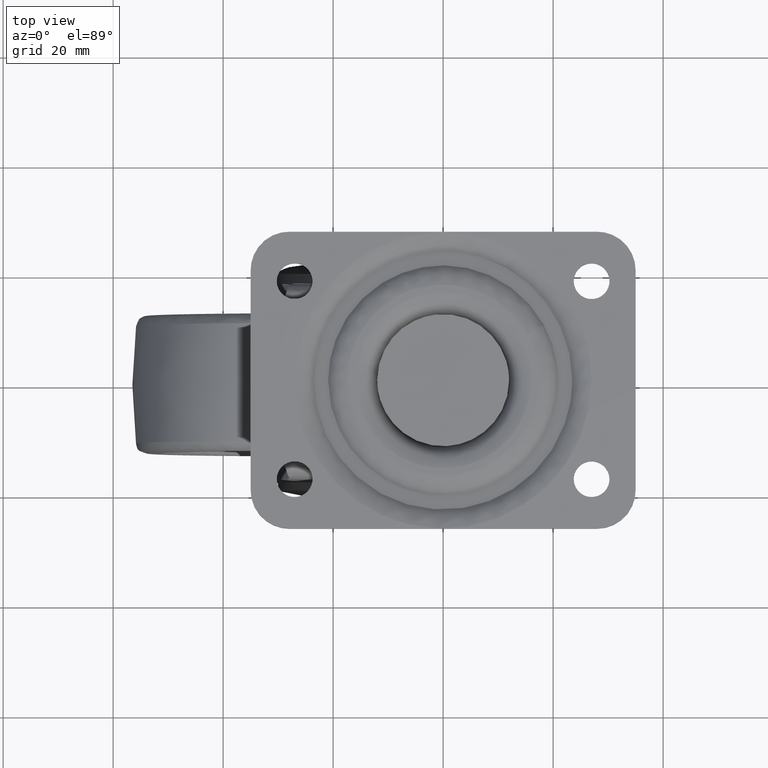
[diagram: clean part render]
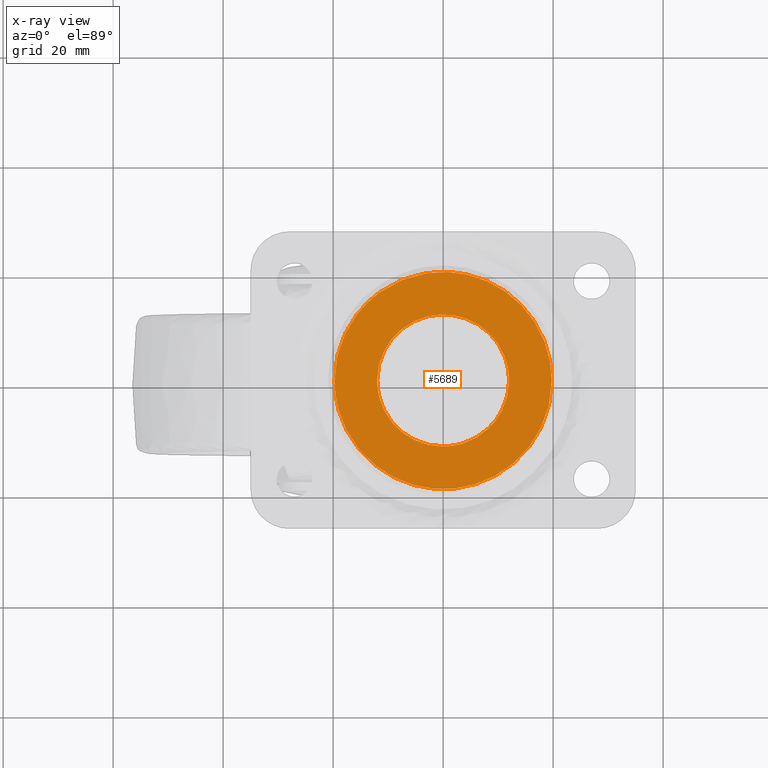
[diagram: x-ray — body ghosted, one internal face saturated and labeled with its STEP entity id]
A machine part, top view, then the same camera in x-ray: the body is ghosted and one INTERNAL B-rep face — a face not visible from any outside direction — is saturated and labeled: STEP entity #5689.
In plain terms, the highlighted face is a freeform B-spline surface patch.
Its self-contained STEP definition (entity closure, byte-faithful):
#3987=CARTESIAN_POINT('',(0.104703580195821,-11.999543206308889,-4.325143999999950));
#3988=VERTEX_POINT('',#3987);
#3994=CARTESIAN_POINT('',(-12.0,0.0,-4.325143999999950));
#3995=VERTEX_POINT('',#3994);
#3996=CARTESIAN_POINT('',(0.104703580195821,-11.999543206308889,-4.325143999999950));
#3997=CARTESIAN_POINT('',(0.052352786532207,-12.000000000000002,-4.325143999999949));
#3998=CARTESIAN_POINT('',(0.0,-12.0,-4.325143999999950));
#3999=CARTESIAN_POINT('',(-12.0,-12.0,-4.325143999999950));
#4000=CARTESIAN_POINT('',(-12.0,0.0,-4.325143999999950));
#4008=(BOUNDED_CURVE()B_SPLINE_CURVE(2,(#3996,#3997,#3998,#3999,#4000),.UNSPECIFIED.,.F.,.U.)B_SPLINE_CURVE_WITH_KNOTS((3,2,3),(0.748460323588177,0.750000000000000,1.0),.UNSPECIFIED.)CURVE()GEOMETRIC_REPRESENTATION_ITEM()RATIONAL_B_SPLINE_CURVE((0.996414532436111,0.998196156879241,1.0,0.707106781186548,1.0))REPRESENTATION_ITEM(''));
#4009=EDGE_CURVE('',#3988,#3995,#4008,.T.);
#4011=CARTESIAN_POINT('',(12.0,0.0,-4.325143999999950));
#4012=VERTEX_POINT('',#4011);
#4013=CARTESIAN_POINT('',(-12.0,0.0,-4.325143999999950));
#4014=CARTESIAN_POINT('',(-12.0,12.0,-4.325143999999950));
#4015=CARTESIAN_POINT('',(0.0,12.0,-4.325143999999950));
#4016=CARTESIAN_POINT('',(12.0,12.0,-4.325143999999950));
#4017=CARTESIAN_POINT('',(12.0,0.0,-4.325143999999950));
#4025=(BOUNDED_CURVE()B_SPLINE_CURVE(2,(#4013,#4014,#4015,#4016,#4017),.UNSPECIFIED.,.F.,.U.)B_SPLINE_CURVE_WITH_KNOTS((3,2,3),(0.0,0.250000000000000,0.500000000000000),.UNSPECIFIED.)CURVE()GEOMETRIC_REPRESENTATION_ITEM()RATIONAL_B_SPLINE_CURVE((1.0,0.707106781186548,1.0,0.707106781186548,1.0))REPRESENTATION_ITEM(''));
#4026=EDGE_CURVE('',#3995,#4012,#4025,.T.);
#4028=CARTESIAN_POINT('',(8.275670914595700,-8.689837220185126,-4.325143999999950));
#4029=VERTEX_POINT('',#4028);
#4030=CARTESIAN_POINT('',(12.0,0.0,-4.325143999999950));
#4031=CARTESIAN_POINT('',(12.000000000000002,-5.143013371136359,-4.325143999999951));
#4032=CARTESIAN_POINT('',(8.275670914595700,-8.689837220185126,-4.325143999999950));
#4040=(BOUNDED_CURVE()B_SPLINE_CURVE(2,(#4030,#4031,#4032),.UNSPECIFIED.,.F.,.U.)B_SPLINE_CURVE_WITH_KNOTS((3,3),(0.500000000000000,0.628682976109211),.UNSPECIFIED.)CURVE()GEOMETRIC_REPRESENTATION_ITEM()RATIONAL_B_SPLINE_CURVE((1.0,0.849238515683514,0.853680523242929))REPRESENTATION_ITEM(''));
#4041=EDGE_CURVE('',#4012,#4029,#4040,.T.);
#4083=CARTESIAN_POINT('',(8.275670914595700,-8.689837220185126,-4.325143999999950));
#4084=CARTESIAN_POINT('',(4.843747165114961,-11.958192063069200,-4.325143999999949));
#4085=CARTESIAN_POINT('',(0.104703580195821,-11.999543206308889,-4.325143999999950));
#4093=(BOUNDED_CURVE()B_SPLINE_CURVE(2,(#4083,#4084,#4085),.UNSPECIFIED.,.F.,.U.)B_SPLINE_CURVE_WITH_KNOTS((3,3),(0.628682976109211,0.748460323588177),.UNSPECIFIED.)CURVE()GEOMETRIC_REPRESENTATION_ITEM()RATIONAL_B_SPLINE_CURVE((0.853680523242929,0.857815117414085,0.996414532436111))REPRESENTATION_ITEM(''));
#4094=EDGE_CURVE('',#4029,#3988,#4093,.T.);
#5451=CARTESIAN_POINT('',(16.620814233835230,10.679114516302960,-4.325144000000059));
#5452=VERTEX_POINT('',#5451);
#5453=CARTESIAN_POINT('',(19.755883999999899,0.0,-4.325144000000001));
#5454=VERTEX_POINT('',#5453);
#5455=CARTESIAN_POINT('',(16.620814233835230,10.679114516302963,-4.325144000000059));
#5456=CARTESIAN_POINT('',(19.755883999999902,5.799738784696147,-4.325144000000001));
#5457=CARTESIAN_POINT('',(19.755883999999899,0.0,-4.325144000000001));
#5465=(BOUNDED_CURVE()B_SPLINE_CURVE(2,(#5455,#5456,#5457),.UNSPECIFIED.,.F.,.U.)B_SPLINE_CURVE_WITH_KNOTS((3,3),(0.407460173953853,0.500000000000000),.UNSPECIFIED.)CURVE()GEOMETRIC_REPRESENTATION_ITEM()RATIONAL_B_SPLINE_CURVE((0.863428933515148,0.891582849923629,1.0))REPRESENTATION_ITEM(''));
#5466=EDGE_CURVE('',#5452,#5454,#5465,.T.);
#5530=CARTESIAN_POINT('',(-11.612217261715429,15.982845895406079,-4.325144000000059));
#5531=VERTEX_POINT('',#5530);
#5545=CARTESIAN_POINT('',(-19.755883999999899,0.0,-4.325144000000001));
#5546=VERTEX_POINT('',#5545);
#5547=CARTESIAN_POINT('',(-19.755883999999899,0.0,-4.325144000000001));
#5548=CARTESIAN_POINT('',(-19.755883999999902,10.066125675109966,-4.325144000000001));
#5549=CARTESIAN_POINT('',(-11.612217261715426,15.982845895406083,-4.325144000000059));
#5557=(BOUNDED_CURVE()B_SPLINE_CURVE(2,(#5547,#5548,#5549),.UNSPECIFIED.,.F.,.U.)B_SPLINE_CURVE_WITH_KNOTS((3,3),(0.0,0.148750340997911),.UNSPECIFIED.)CURVE()GEOMETRIC_REPRESENTATION_ITEM()RATIONAL_B_SPLINE_CURVE((1.0,0.825728135302093,0.858840265005429))REPRESENTATION_ITEM(''));
#5558=EDGE_CURVE('',#5546,#5531,#5557,.T.);
#5560=CARTESIAN_POINT('',(19.755883999999899,0.0,-4.325144000000001));
#5561=CARTESIAN_POINT('',(19.755883999999906,-19.755883999999906,-4.325144000000002));
#5562=CARTESIAN_POINT('',(0.0,-19.755883999999899,-4.325144000000001));
#5563=CARTESIAN_POINT('',(-19.755883999999906,-19.755883999999906,-4.325144000000002));
#5564=CARTESIAN_POINT('',(-19.755883999999899,0.0,-4.325144000000001));
#5572=(BOUNDED_CURVE()B_SPLINE_CURVE(2,(#5560,#5561,#5562,#5563,#5564),.UNSPECIFIED.,.F.,.U.)B_SPLINE_CURVE_WITH_KNOTS((3,2,3),(0.500000000000000,0.750000000000000,1.0),.UNSPECIFIED.)CURVE()GEOMETRIC_REPRESENTATION_ITEM()RATIONAL_B_SPLINE_CURVE((1.0,0.707106781186548,1.0,0.707106781186548,1.0))REPRESENTATION_ITEM(''));
#5573=EDGE_CURVE('',#5454,#5546,#5572,.T.);
#5601=CARTESIAN_POINT('',(-11.612217261715426,15.982845895406086,-4.325144000000058));
#5602=CARTESIAN_POINT('',(-6.419075828223971,19.755883999999906,-4.325144000000001));
#5603=CARTESIAN_POINT('',(0.0,19.755883999999899,-4.325144000000001));
#5604=CARTESIAN_POINT('',(10.788858024849519,19.755883999999906,-4.325144000000001));
#5605=CARTESIAN_POINT('',(16.620814233835230,10.679114516302963,-4.325144000000059));
#5613=(BOUNDED_CURVE()B_SPLINE_CURVE(2,(#5601,#5602,#5603,#5604,#5605),.UNSPECIFIED.,.F.,.U.)B_SPLINE_CURVE_WITH_KNOTS((3,2,3),(0.148750340997911,0.250000000000000,0.407460173953854),.UNSPECIFIED.)CURVE()GEOMETRIC_REPRESENTATION_ITEM()RATIONAL_B_SPLINE_CURVE((0.858840265005429,0.881378645884454,1.0,0.815523931262919,0.863428933515148))REPRESENTATION_ITEM(''));
#5614=EDGE_CURVE('',#5531,#5452,#5613,.T.);
#5672=CARTESIAN_POINT('',(21.729497105926630,-21.729238710854681,-4.325144000000001));
#5673=CARTESIAN_POINT('',(-21.729497812452099,-21.729238710854681,-4.325144000000001));
#5674=CARTESIAN_POINT('',(21.729497105926630,21.724066343546561,-4.325144000000001));
#5675=CARTESIAN_POINT('',(-21.729497812452099,21.724066343546561,-4.325144000000001));
#5676=B_SPLINE_SURFACE_WITH_KNOTS('',1,1,((#5672,#5674),(#5673,#5675)),.UNSPECIFIED.,.F.,.F.,.U.,(2,2),(2,2),(0.0,43.458994918378728),(0.0,43.453305054401248),.UNSPECIFIED.);
#5677=ORIENTED_EDGE('',*,*,#5466,.T.);
#5678=ORIENTED_EDGE('',*,*,#5573,.T.);
#5679=ORIENTED_EDGE('',*,*,#5558,.T.);
#5680=ORIENTED_EDGE('',*,*,#5614,.T.);
#5681=EDGE_LOOP('',(#5677,#5678,#5679,#5680));
#5682=FACE_OUTER_BOUND('',#5681,.T.);
#5683=ORIENTED_EDGE('',*,*,#4026,.F.);
#5684=ORIENTED_EDGE('',*,*,#4009,.F.);
#5685=ORIENTED_EDGE('',*,*,#4094,.F.);
#5686=ORIENTED_EDGE('',*,*,#4041,.F.);
#5687=EDGE_LOOP('',(#5683,#5684,#5685,#5686));
#5688=FACE_BOUND('',#5687,.T.);
#5689=ADVANCED_FACE('',(#5682,#5688),#5676,.T.);